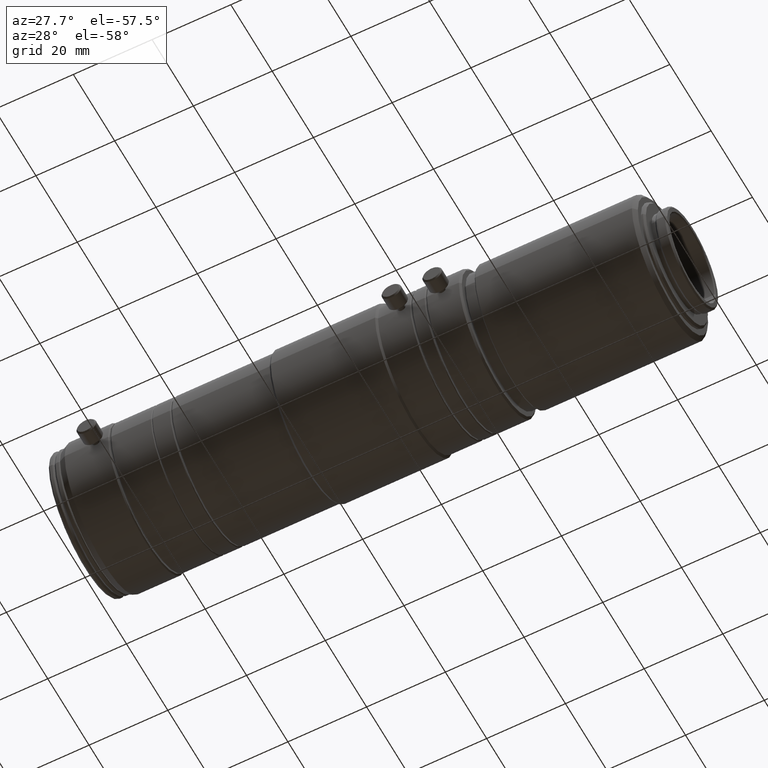
[diagram: clean part render]
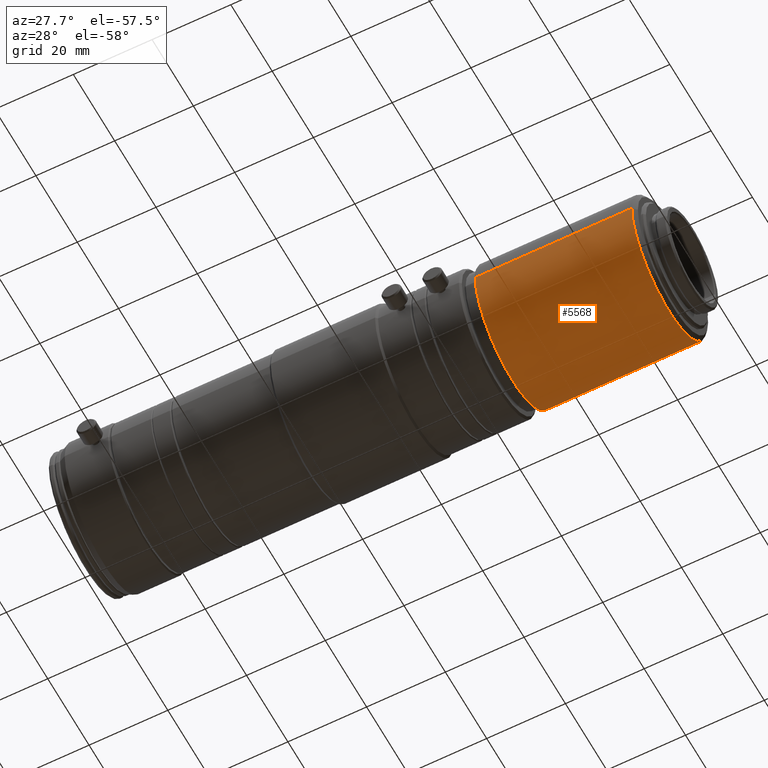
[diagram: same view with one face highlighted and labeled with its STEP entity id]
A machine part, auxiliary view. The second image highlights one B-rep face of the part: STEP entity #5568.
In plain terms, the highlighted cylindrical surface (partial cylindrical patch) has radius 18 mm, axis along (-1, -0, -0).
Its self-contained STEP definition (entity closure, byte-faithful):
#120 = DIRECTION ( 'NONE',  ( 4.625929269271552400E-015, -1.000000000000000000, 0.0000000000000000000 ) ) ;
#132 = CARTESIAN_POINT ( 'NONE',  ( 148.3244124218994400, -17.99999999999893400, 0.0000000000000000000 ) ) ;
#625 = ORIENTED_EDGE ( 'NONE', *, *, #4900, .F. ) ;
#664 = DIRECTION ( 'NONE',  ( -1.000000000000000000, -4.558507189758049000E-015, -0.0000000000000000000 ) ) ;
#746 = EDGE_CURVE ( 'NONE', #5892, #5440, #5142, .T. ) ;
#1210 = CARTESIAN_POINT ( 'NONE',  ( 148.3244124218992700, 18.00000000000018100, 2.204364238465181000E-015 ) ) ;
#1354 = DIRECTION ( 'NONE',  ( -1.000000000000000000, -4.558507189758049000E-015, -0.0000000000000000000 ) ) ;
#1487 = DIRECTION ( 'NONE',  ( -1.000000000000000000, -4.558507189758049000E-015, -0.0000000000000000000 ) ) ;
#1890 = CARTESIAN_POINT ( 'NONE',  ( 8.060974633347335300, -9.399456682414691900E-015, 0.0000000000000000000 ) ) ;
#2086 = EDGE_LOOP ( 'NONE', ( #625, #4555, #4504, #5066 ) ) ;
#2330 = DIRECTION ( 'NONE',  ( -1.000000000000000000, -4.558507189758049000E-015, -0.0000000000000000000 ) ) ;
#2463 = DIRECTION ( 'NONE',  ( 4.529555742828418300E-015, -1.000000000000000000, 0.0000000000000000000 ) ) ;
#2762 = CYLINDRICAL_SURFACE ( 'NONE', #4790, 17.99999999999964800 ) ;
#2869 = CARTESIAN_POINT ( 'NONE',  ( 108.5244124218994400, -17.99999999999929300, 0.0000000000000000000 ) ) ;
#3321 = VERTEX_POINT ( 'NONE', #132 ) ;
#4011 = CARTESIAN_POINT ( 'NONE',  ( 148.3244124218993500, 6.299924329368804800E-013, 0.0000000000000000000 ) ) ;
#4204 = VECTOR ( 'NONE', #1487, 1000.000000000000000 ) ;
#4211 = LINE ( 'NONE', #4860, #4204 ) ;
#4392 = EDGE_CURVE ( 'NONE', #7189, #3321, #5710, .T. ) ;
#4504 = ORIENTED_EDGE ( 'NONE', *, *, #7004, .T. ) ;
#4555 = ORIENTED_EDGE ( 'NONE', *, *, #4392, .T. ) ;
#4581 = DIRECTION ( 'NONE',  ( 4.625929269271598100E-015, -1.000000000000000000, 0.0000000000000000000 ) ) ;
#4625 = DIRECTION ( 'NONE',  ( -1.000000000000000000, -4.558507189758049000E-015, -0.0000000000000000000 ) ) ;
#4790 = AXIS2_PLACEMENT_3D ( 'NONE', #1890, #1354, #2463 ) ;
#4860 = CARTESIAN_POINT ( 'NONE',  ( 8.060974633347253600, 17.99999999999963800, 2.204364238465192800E-015 ) ) ;
#4863 = LINE ( 'NONE', #5145, #5043 ) ;
#4900 = EDGE_CURVE ( 'NONE', #7189, #5892, #4211, .T. ) ;
#5043 = VECTOR ( 'NONE', #2330, 1000.000000000000000 ) ;
#5066 = ORIENTED_EDGE ( 'NONE', *, *, #746, .F. ) ;
#5142 = CIRCLE ( 'NONE', #5858, 17.99999999999974100 ) ;
#5145 = CARTESIAN_POINT ( 'NONE',  ( 8.060974633347417000, -17.99999999999965900, 0.0000000000000000000 ) ) ;
#5162 = AXIS2_PLACEMENT_3D ( 'NONE', #4011, #664, #4581 ) ;
#5440 = VERTEX_POINT ( 'NONE', #2869 ) ;
#5454 = CARTESIAN_POINT ( 'NONE',  ( 108.5244124218993700, 4.485638467845102200E-013, 0.0000000000000000000 ) ) ;
#5568 = ADVANCED_FACE ( 'NONE', ( #7258 ), #2762, .T. ) ;
#5710 = CIRCLE ( 'NONE', #5162, 17.99999999999956300 ) ;
#5858 = AXIS2_PLACEMENT_3D ( 'NONE', #5454, #4625, #120 ) ;
#5892 = VERTEX_POINT ( 'NONE', #6377 ) ;
#6377 = CARTESIAN_POINT ( 'NONE',  ( 108.5244124218992900, 18.00000000000018800, 2.204364238465198400E-015 ) ) ;
#7004 = EDGE_CURVE ( 'NONE', #3321, #5440, #4863, .T. ) ;
#7189 = VERTEX_POINT ( 'NONE', #1210 ) ;
#7258 = FACE_OUTER_BOUND ( 'NONE', #2086, .T. ) ;